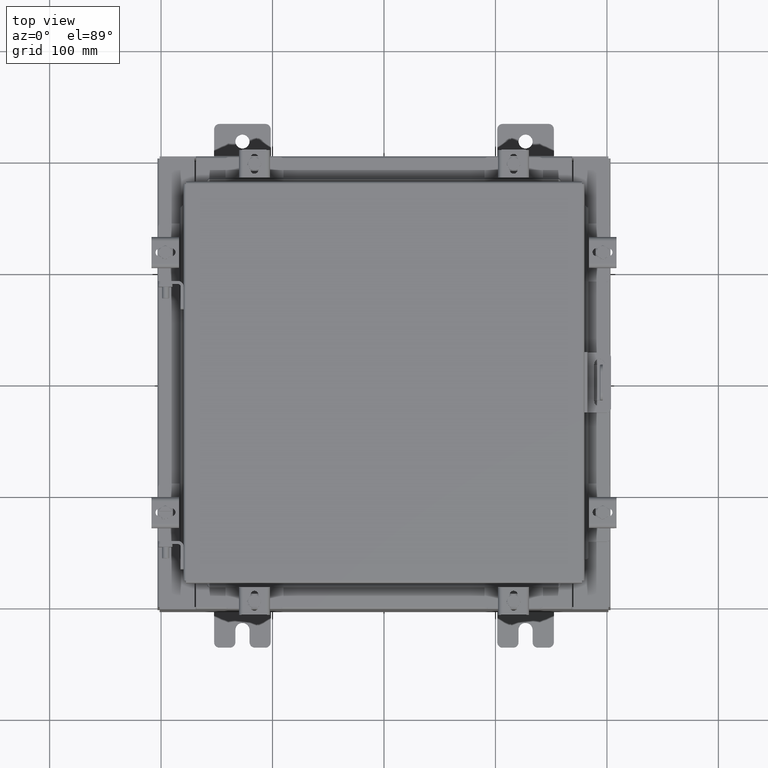
[diagram: clean part render]
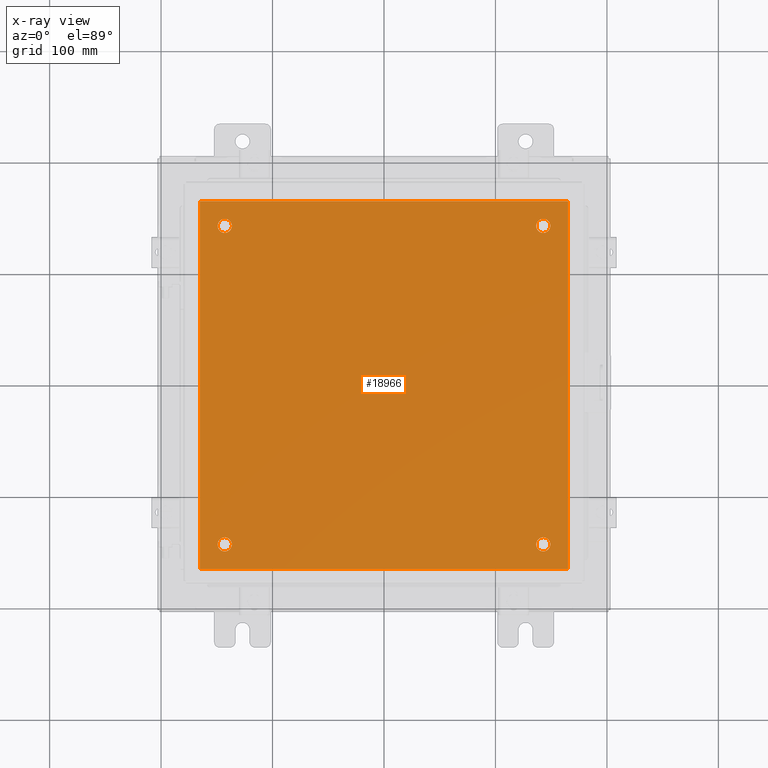
[diagram: x-ray — body ghosted, one internal face saturated and labeled with its STEP entity id]
A machine part, top view, then the same camera in x-ray: the body is ghosted and one INTERNAL B-rep face — a face not visible from any outside direction — is saturated and labeled: STEP entity #18966.
In plain terms, the highlighted planar face has unit normal (0, 0, -1).
Its self-contained STEP definition (entity closure, byte-faithful):
#1150 = EDGE_CURVE ( 'NONE', #7600, #19917, #19687, .T. ) ;
#1167 = DIRECTION ( 'NONE',  ( -0.0000000000000000000, -0.0000000000000000000, 1.000000000000000000 ) ) ;
#1284 = CARTESIAN_POINT ( 'NONE',  ( 5.625000000000002700, 5.625000000000000900, -0.1039999999999999800 ) ) ;
#1769 = VERTEX_POINT ( 'NONE', #5774 ) ;
#2004 = AXIS2_PLACEMENT_3D ( 'NONE', #7707, #19631, #9418 ) ;
#2054 = ORIENTED_EDGE ( 'NONE', *, *, #14945, .T. ) ;
#2075 = AXIS2_PLACEMENT_3D ( 'NONE', #19350, #19992, #19458 ) ;
#2215 = DIRECTION ( 'NONE',  ( -0.0000000000000000000, -0.0000000000000000000, 1.000000000000000000 ) ) ;
#2473 = CARTESIAN_POINT ( 'NONE',  ( -5.375000000000002700, -5.625000000000000900, -0.1039999999999999800 ) ) ;
#2720 = AXIS2_PLACEMENT_3D ( 'NONE', #20025, #9816, #21757 ) ;
#2800 = AXIS2_PLACEMENT_3D ( 'NONE', #6980, #18897, #8694 ) ;
#2888 = CARTESIAN_POINT ( 'NONE',  ( 6.500000000000000000, -6.499999999999999100, -0.1039999999999999800 ) ) ;
#2974 = DIRECTION ( 'NONE',  ( -1.000000000000000000, 0.0000000000000000000, 0.0000000000000000000 ) ) ;
#3544 = ORIENTED_EDGE ( 'NONE', *, *, #17045, .F. ) ;
#3569 = ORIENTED_EDGE ( 'NONE', *, *, #18813, .F. ) ;
#3782 = CARTESIAN_POINT ( 'NONE',  ( -5.875000000000001800, -5.625000000000000900, -0.1039999999999999800 ) ) ;
#3898 = CARTESIAN_POINT ( 'NONE',  ( -6.500000000000000000, -6.499999999999999100, -0.1039999999999999800 ) ) ;
#4272 = ORIENTED_EDGE ( 'NONE', *, *, #5277, .T. ) ;
#4294 = EDGE_CURVE ( 'NONE', #15813, #9614, #13045, .T. ) ;
#4299 = VERTEX_POINT ( 'NONE', #18437 ) ;
#4991 = CARTESIAN_POINT ( 'NONE',  ( 6.500000000000000000, 6.500000000000000900, -0.1039999999999999800 ) ) ;
#5036 = DIRECTION ( 'NONE',  ( -1.000000000000000000, 0.0000000000000000000, -0.0000000000000000000 ) ) ;
#5277 = EDGE_CURVE ( 'NONE', #9235, #13136, #10372, .T. ) ;
#5594 = DIRECTION ( 'NONE',  ( 1.000000000000000000, 0.0000000000000000000, 0.0000000000000000000 ) ) ;
#5774 = CARTESIAN_POINT ( 'NONE',  ( 5.875000000000000900, 5.625000000000000900, -0.1039999999999999800 ) ) ;
#5997 = VECTOR ( 'NONE', #5594, 39.37007874015748100 ) ;
#6260 = ORIENTED_EDGE ( 'NONE', *, *, #4294, .F. ) ;
#6294 = VECTOR ( 'NONE', #16469, 39.37007874015748100 ) ;
#6578 = EDGE_LOOP ( 'NONE', ( #18305, #4272 ) ) ;
#6980 = CARTESIAN_POINT ( 'NONE',  ( -5.625000000000002700, -5.625000000000000900, -0.1039999999999999800 ) ) ;
#7049 = AXIS2_PLACEMENT_3D ( 'NONE', #8921, #20850, #10624 ) ;
#7081 = FACE_OUTER_BOUND ( 'NONE', #19609, .T. ) ;
#7165 = CIRCLE ( 'NONE', #2720, 0.2499999999999987000 ) ;
#7219 = EDGE_CURVE ( 'NONE', #4299, #19052, #7165, .T. ) ;
#7600 = VERTEX_POINT ( 'NONE', #20768 ) ;
#7606 = FACE_BOUND ( 'NONE', #9950, .T. ) ;
#7662 = CARTESIAN_POINT ( 'NONE',  ( 5.375000000000003600, 5.625000000000000900, -0.1039999999999999800 ) ) ;
#7707 = CARTESIAN_POINT ( 'NONE',  ( 5.625000000000002700, -5.625000000000000900, -0.1039999999999999800 ) ) ;
#7980 = CIRCLE ( 'NONE', #2004, 0.2499999999999987000 ) ;
#8013 = VECTOR ( 'NONE', #19895, 39.37007874015748100 ) ;
#8243 = DIRECTION ( 'NONE',  ( -0.0000000000000000000, -1.000000000000000000, -0.0000000000000000000 ) ) ;
#8527 = VECTOR ( 'NONE', #8243, 39.37007874015748100 ) ;
#8694 = DIRECTION ( 'NONE',  ( -1.000000000000000000, 0.0000000000000000000, 0.0000000000000000000 ) ) ;
#8766 = CARTESIAN_POINT ( 'NONE',  ( 6.500000000000000000, -6.499999999999999100, -0.1039999999999999800 ) ) ;
#8921 = CARTESIAN_POINT ( 'NONE',  ( 5.625000000000002700, 5.625000000000000900, -0.1039999999999999800 ) ) ;
#9235 = VERTEX_POINT ( 'NONE', #3782 ) ;
#9418 = DIRECTION ( 'NONE',  ( -1.000000000000000000, 0.0000000000000000000, 0.0000000000000000000 ) ) ;
#9614 = VERTEX_POINT ( 'NONE', #19994 ) ;
#9816 = DIRECTION ( 'NONE',  ( -0.0000000000000000000, -0.0000000000000000000, 1.000000000000000000 ) ) ;
#9950 = EDGE_LOOP ( 'NONE', ( #16410, #14761 ) ) ;
#10132 = CARTESIAN_POINT ( 'NONE',  ( -6.500000000000000000, 6.500000000000000900, -0.1039999999999999800 ) ) ;
#10372 = CIRCLE ( 'NONE', #14799, 0.2499999999999998100 ) ;
#10624 = DIRECTION ( 'NONE',  ( -1.000000000000000000, 0.0000000000000000000, 0.0000000000000000000 ) ) ;
#10782 = EDGE_CURVE ( 'NONE', #9614, #19912, #19579, .T. ) ;
#10809 = EDGE_LOOP ( 'NONE', ( #13853, #2054 ) ) ;
#10971 = VERTEX_POINT ( 'NONE', #7662 ) ;
#11262 = ORIENTED_EDGE ( 'NONE', *, *, #14548, .T. ) ;
#11319 = CARTESIAN_POINT ( 'NONE',  ( -5.625000000000002700, 5.625000000000000900, -0.1039999999999999800 ) ) ;
#11598 = FACE_BOUND ( 'NONE', #6578, .T. ) ;
#11758 = PLANE ( 'NONE',  #16681 ) ;
#12115 = CARTESIAN_POINT ( 'NONE',  ( -5.875000000000001800, 5.625000000000000900, -0.1039999999999999800 ) ) ;
#12381 = CARTESIAN_POINT ( 'NONE',  ( -5.625000000000002700, -5.625000000000000900, -0.1039999999999999800 ) ) ;
#12533 = LINE ( 'NONE', #14744, #8013 ) ;
#13038 = DIRECTION ( 'NONE',  ( -1.000000000000000000, 0.0000000000000000000, 0.0000000000000000000 ) ) ;
#13045 = LINE ( 'NONE', #15019, #8527 ) ;
#13133 = DIRECTION ( 'NONE',  ( -0.0000000000000000000, -0.0000000000000000000, 1.000000000000000000 ) ) ;
#13136 = VERTEX_POINT ( 'NONE', #2473 ) ;
#13406 = VERTEX_POINT ( 'NONE', #4991 ) ;
#13493 = CARTESIAN_POINT ( 'NONE',  ( 0.0000000000000000000, 0.0000000000000000000, -0.1039999999999999800 ) ) ;
#13853 = ORIENTED_EDGE ( 'NONE', *, *, #17639, .T. ) ;
#14105 = DIRECTION ( 'NONE',  ( -1.000000000000000000, 0.0000000000000000000, 0.0000000000000000000 ) ) ;
#14548 = EDGE_CURVE ( 'NONE', #19917, #7600, #17436, .T. ) ;
#14744 = CARTESIAN_POINT ( 'NONE',  ( -6.500000000000000000, 6.500000000000000900, -0.1039999999999999800 ) ) ;
#14761 = ORIENTED_EDGE ( 'NONE', *, *, #18108, .T. ) ;
#14799 = AXIS2_PLACEMENT_3D ( 'NONE', #12381, #2215, #14105 ) ;
#14823 = LINE ( 'NONE', #2888, #6294 ) ;
#14945 = EDGE_CURVE ( 'NONE', #10971, #1769, #19559, .T. ) ;
#15019 = CARTESIAN_POINT ( 'NONE',  ( -6.500000000000000000, -6.499999999999999100, -0.1039999999999999800 ) ) ;
#15217 = DIRECTION ( 'NONE',  ( 0.0000000000000000000, 0.0000000000000000000, -1.000000000000000000 ) ) ;
#15368 = EDGE_CURVE ( 'NONE', #13136, #9235, #17664, .T. ) ;
#15813 = VERTEX_POINT ( 'NONE', #10132 ) ;
#16025 = ORIENTED_EDGE ( 'NONE', *, *, #1150, .T. ) ;
#16133 = FACE_BOUND ( 'NONE', #18765, .T. ) ;
#16410 = ORIENTED_EDGE ( 'NONE', *, *, #7219, .T. ) ;
#16469 = DIRECTION ( 'NONE',  ( 0.0000000000000000000, 1.000000000000000000, 0.0000000000000000000 ) ) ;
#16516 = AXIS2_PLACEMENT_3D ( 'NONE', #1284, #13133, #2974 ) ;
#16681 = AXIS2_PLACEMENT_3D ( 'NONE', #13493, #15217, #5036 ) ;
#17045 = EDGE_CURVE ( 'NONE', #13406, #15813, #12533, .T. ) ;
#17436 = CIRCLE ( 'NONE', #20481, 0.2499999999999998100 ) ;
#17639 = EDGE_CURVE ( 'NONE', #1769, #10971, #18921, .T. ) ;
#17664 = CIRCLE ( 'NONE', #2800, 0.2499999999999998100 ) ;
#18108 = EDGE_CURVE ( 'NONE', #19052, #4299, #7980, .T. ) ;
#18305 = ORIENTED_EDGE ( 'NONE', *, *, #15368, .T. ) ;
#18437 = CARTESIAN_POINT ( 'NONE',  ( 5.875000000000000900, -5.625000000000000900, -0.1039999999999999800 ) ) ;
#18765 = EDGE_LOOP ( 'NONE', ( #16025, #11262 ) ) ;
#18813 = EDGE_CURVE ( 'NONE', #19912, #13406, #14823, .T. ) ;
#18897 = DIRECTION ( 'NONE',  ( -0.0000000000000000000, -0.0000000000000000000, 1.000000000000000000 ) ) ;
#18921 = CIRCLE ( 'NONE', #16516, 0.2499999999999987000 ) ;
#18966 = ADVANCED_FACE ( 'NONE', ( #11598, #7606, #20687, #16133, #7081 ), #11758, .T. ) ;
#19052 = VERTEX_POINT ( 'NONE', #20516 ) ;
#19350 = CARTESIAN_POINT ( 'NONE',  ( -5.625000000000002700, 5.625000000000000900, -0.1039999999999999800 ) ) ;
#19458 = DIRECTION ( 'NONE',  ( -1.000000000000000000, 0.0000000000000000000, 0.0000000000000000000 ) ) ;
#19559 = CIRCLE ( 'NONE', #7049, 0.2499999999999987000 ) ;
#19579 = LINE ( 'NONE', #3898, #5997 ) ;
#19609 = EDGE_LOOP ( 'NONE', ( #3569, #20809, #6260, #3544 ) ) ;
#19631 = DIRECTION ( 'NONE',  ( -0.0000000000000000000, -0.0000000000000000000, 1.000000000000000000 ) ) ;
#19687 = CIRCLE ( 'NONE', #2075, 0.2499999999999998100 ) ;
#19895 = DIRECTION ( 'NONE',  ( -1.000000000000000000, -0.0000000000000000000, -0.0000000000000000000 ) ) ;
#19912 = VERTEX_POINT ( 'NONE', #8766 ) ;
#19917 = VERTEX_POINT ( 'NONE', #12115 ) ;
#19992 = DIRECTION ( 'NONE',  ( -0.0000000000000000000, -0.0000000000000000000, 1.000000000000000000 ) ) ;
#19994 = CARTESIAN_POINT ( 'NONE',  ( -6.500000000000000000, -6.499999999999999100, -0.1039999999999999800 ) ) ;
#20025 = CARTESIAN_POINT ( 'NONE',  ( 5.625000000000002700, -5.625000000000000900, -0.1039999999999999800 ) ) ;
#20481 = AXIS2_PLACEMENT_3D ( 'NONE', #11319, #1167, #13038 ) ;
#20516 = CARTESIAN_POINT ( 'NONE',  ( 5.375000000000003600, -5.625000000000000900, -0.1039999999999999800 ) ) ;
#20687 = FACE_BOUND ( 'NONE', #10809, .T. ) ;
#20768 = CARTESIAN_POINT ( 'NONE',  ( -5.375000000000002700, 5.625000000000000900, -0.1039999999999999800 ) ) ;
#20809 = ORIENTED_EDGE ( 'NONE', *, *, #10782, .F. ) ;
#20850 = DIRECTION ( 'NONE',  ( -0.0000000000000000000, -0.0000000000000000000, 1.000000000000000000 ) ) ;
#21757 = DIRECTION ( 'NONE',  ( -1.000000000000000000, 0.0000000000000000000, 0.0000000000000000000 ) ) ;